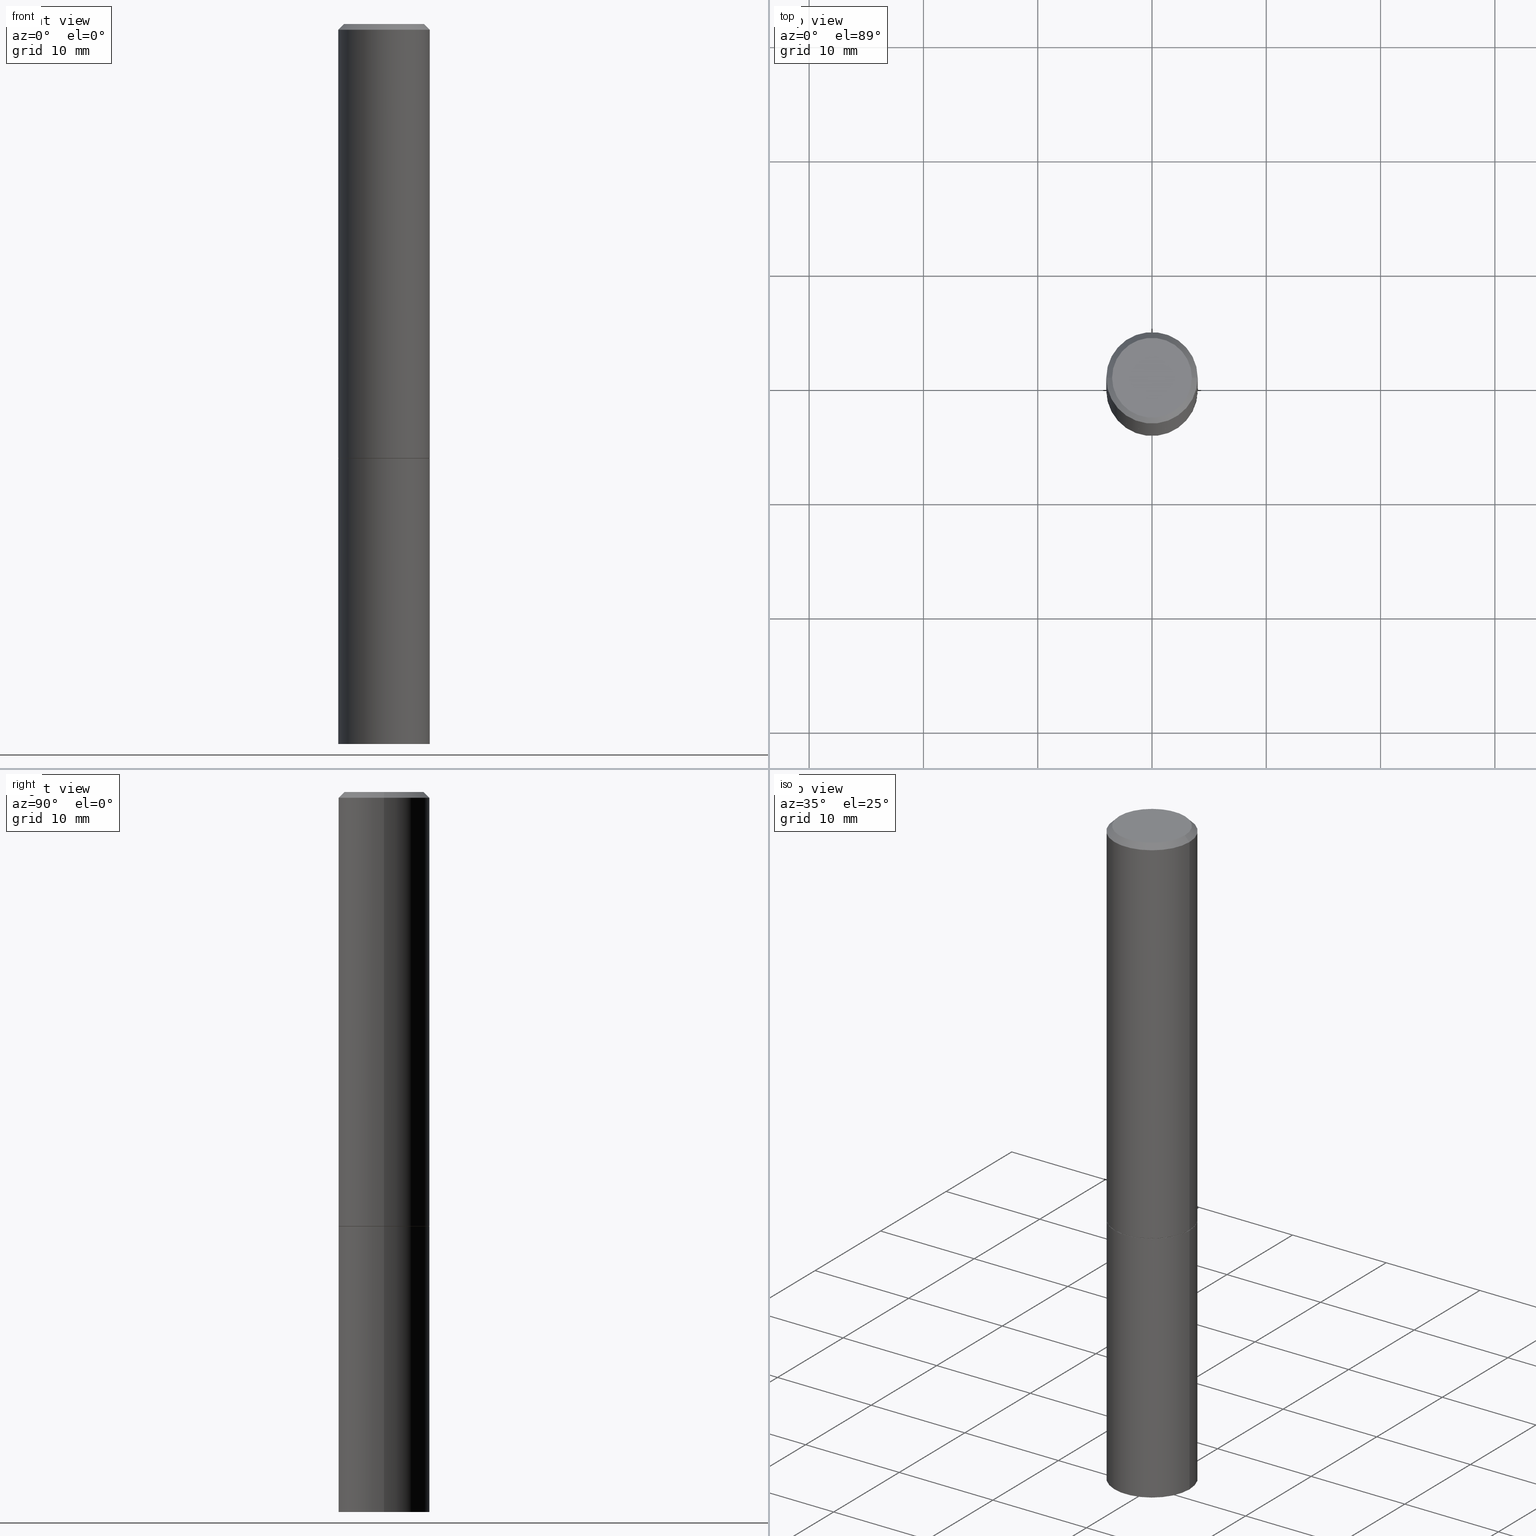
[diagram: canonical four-view strip — front | top / right | iso, engineering-drawing reading convention]
A machine part, canonical four-view strip (front | top / right | iso — engineering-drawing reading convention). The complete STEP part file that produces these views, byte-faithful:
ISO-10303-21;
HEADER;
FILE_DESCRIPTION (( 'STEP AP203' ),
    '1' );
FILE_NAME ('83232.STEP',
    '2024-03-01T01:42:15',
    ( '' ),
    ( '' ),
    'SwSTEP 2.0',
    'SolidWorks 2023',
    '' );
FILE_SCHEMA (( 'CONFIG_CONTROL_DESIGN' ));
ENDSEC;

DATA;
#1 = CARTESIAN_POINT ( 'NONE',  ( -0.1574999999999999456, 1.119104808822157406E-15, -7.747322767151474182E-30 ) ) ;
#2 = DIRECTION ( 'NONE',  ( 1.000000000000000000, -6.982962677686267499E-15, 4.876176775795935793E-29 ) ) ;
#3 = FACE_OUTER_BOUND ( 'NONE', #59, .T. ) ;
#4 = LINE ( 'NONE', #216, #126 ) ;
#5 = CIRCLE ( 'NONE', #95, 0.1575000000000000011 ) ;
#6 = FACE_OUTER_BOUND ( 'NONE', #335, .T. ) ;
#7 = CARTESIAN_POINT ( 'NONE',  ( -1.043851414335219820E-46, 1.490343170380447200E-32, 4.268512490100411279E-18 ) ) ;
#8 = SECURITY_CLASSIFICATION ( '', '', #146 ) ;
#9 = CARTESIAN_POINT ( 'NONE',  ( 0.1574999999999999456, -1.099816621735586691E-15, 7.679978421878596632E-30 ) ) ;
#10 = DATE_TIME_ROLE ( 'classification_date' ) ;
#11 = CC_DESIGN_PERSON_AND_ORGANIZATION_ASSIGNMENT ( #325, #265, ( #354 ) ) ;
#12 = AXIS2_PLACEMENT_3D ( 'NONE', #33, #314, #197 ) ;
#13 = COORDINATED_UNIVERSAL_TIME_OFFSET ( 5, 0, .BEHIND. ) ;
#14 = EDGE_LOOP ( 'NONE', ( #125, #192, #178, #42 ) ) ;
#15 = COORDINATED_UNIVERSAL_TIME_OFFSET ( 5, 0, .BEHIND. ) ;
#16 = ORIENTED_EDGE ( 'NONE', *, *, #254, .T. ) ;
#17 = LINE ( 'NONE', #91, #181 ) ;
#18 = DIRECTION ( 'NONE',  ( -2.445468806185136877E-29, 3.491481338843145188E-15, 1.000000000000000000 ) ) ;
#19 = ADVANCED_FACE ( 'NONE', ( #6 ), #193, .F. ) ;
#20 = APPROVAL_DATE_TIME ( #357, #84 ) ;
#21 = DIRECTION ( 'NONE',  ( 2.438088387897960049E-29, -3.491481338843145188E-15, -1.000000000000000000 ) ) ;
#22 = CARTESIAN_POINT ( 'NONE',  ( 3.655975865246779683E-29, -5.219764601570503930E-15, -1.495000000000000329 ) ) ;
#23 = DESIGN_CONTEXT ( 'detailed design', #213, 'design' ) ;
#24 = ADVANCED_FACE ( 'NONE', ( #31 ), #32, .T. ) ;
#25 = VECTOR ( 'NONE', #96, 39.37007874015748143 ) ;
#26 = COORDINATED_UNIVERSAL_TIME_OFFSET ( 5, 0, .BEHIND. ) ;
#27 = ORIENTED_EDGE ( 'NONE', *, *, #366, .T. ) ;
#28 = CIRCLE ( 'NONE', #247, 0.1565000000000000002 ) ;
#29 = ORIENTED_EDGE ( 'NONE', *, *, #39, .F. ) ;
#30 = AXIS2_PLACEMENT_3D ( 'NONE', #74, #184, #49 ) ;
#31 = FACE_OUTER_BOUND ( 'NONE', #68, .T. ) ;
#32 = CYLINDRICAL_SURFACE ( 'NONE', #302, 0.1574999999999999456 ) ;
#33 = CARTESIAN_POINT ( 'NONE',  ( 3.658421334052965286E-29, -5.223256082909346937E-15, -1.496000000000000441 ) ) ;
#34 = ADVANCED_FACE ( 'NONE', ( #3 ), #284, .T. ) ;
#35 = DIRECTION ( 'NONE',  ( -2.445468806185136597E-29, 3.491481338843145583E-15, 1.000000000000000000 ) ) ;
#36 = CARTESIAN_POINT ( 'NONE',  ( 1.099816621735647434E-15, 0.1574999999999913136, -2.480300000000001059 ) ) ;
#37 = APPROVAL_STATUS ( 'not_yet_approved' ) ;
#38 = FACE_OUTER_BOUND ( 'NONE', #351, .T. ) ;
#39 = EDGE_CURVE ( 'NONE', #57, #297, #315, .T. ) ;
#40 = PERSON_AND_ORGANIZATION ( #148, #134 ) ;
#41 = AXIS2_PLACEMENT_3D ( 'NONE', #207, #47, #238 ) ;
#42 = ORIENTED_EDGE ( 'NONE', *, *, #132, .F. ) ;
#43 = CIRCLE ( 'NONE', #188, 0.1575000000000000566 ) ;
#44 = CALENDAR_DATE ( 2024, 29, 2 ) ;
#45 = ORIENTED_EDGE ( 'NONE', *, *, #80, .F. ) ;
#46 = DIRECTION ( 'NONE',  ( 1.000000000000000000, -6.982962677686267499E-15, 0.000000000000000000 ) ) ;
#47 = DIRECTION ( 'NONE',  ( 2.445468806185136597E-29, -3.491481338843145583E-15, -1.000000000000000000 ) ) ;
#48 = ADVANCED_FACE ( 'NONE', ( #331 ), #156, .T. ) ;
#49 = DIRECTION ( 'NONE',  ( 1.000000000000000000, -6.982962677686268288E-15, 0.000000000000000000 ) ) ;
#50 = VECTOR ( 'NONE', #109, 39.37007874015748143 ) ;
#51 = EDGE_CURVE ( 'NONE', #83, #166, #77, .T. ) ;
#52 = CC_DESIGN_DATE_AND_TIME_ASSIGNMENT ( #256, #10, ( #8 ) ) ;
#53 = CARTESIAN_POINT ( 'NONE',  ( 3.658421334052965286E-29, -5.223256082909346937E-15, -1.496000000000000441 ) ) ;
#54 = DATE_TIME_ROLE ( 'creation_date' ) ;
#55 = DIRECTION ( 'NONE',  ( 1.000000000000000000, -6.982962677686265922E-15, 4.876173381029105087E-29 ) ) ;
#56 = CIRCLE ( 'NONE', #220, 0.1565000000000000002 ) ;
#57 = VERTEX_POINT ( 'NONE', #294 ) ;
#58 = DIRECTION ( 'NONE',  ( -2.445468806185136597E-29, 3.491481338843145583E-15, 1.000000000000000000 ) ) ;
#59 = EDGE_LOOP ( 'NONE', ( #347, #165, #145, #281 ) ) ;
#60 = CARTESIAN_POINT ( 'NONE',  ( -0.1565000000000000002, -4.111256701444790342E-15, -1.496000000000000441 ) ) ;
#61 = CALENDAR_DATE ( 2024, 29, 2 ) ;
#62 = ORIENTED_EDGE ( 'NONE', *, *, #129, .F. ) ;
#63 = LINE ( 'NONE', #171, #246 ) ;
#64 = ADVANCED_FACE ( 'NONE', ( #119 ), #271, .F. ) ;
#65 = LINE ( 'NONE', #60, #208 ) ;
#66 = PERSON_AND_ORGANIZATION_ROLE ( 'design_supplier' ) ;
#67 = DATE_AND_TIME ( #318, #160 ) ;
#68 = EDGE_LOOP ( 'NONE', ( #237, #168, #263, #228 ) ) ;
#69 = MANIFOLD_SOLID_BREP ( 'Body-Move/Copy2[1]', #308 ) ;
#70 = ORIENTED_EDGE ( 'NONE', *, *, #206, .T. ) ;
#71 = EDGE_CURVE ( 'NONE', #270, #128, #177, .T. ) ;
#72 = LOCAL_TIME ( 20, 42, 15.00000000000000000, #15 ) ;
#73 = CARTESIAN_POINT ( 'NONE',  ( 3.658421334052965286E-29, -5.223256082909346937E-15, -1.496000000000000441 ) ) ;
#74 = CARTESIAN_POINT ( 'NONE',  ( 3.658421334052965286E-29, -5.223256082909346937E-15, -1.496000000000000441 ) ) ;
#75 = ADVANCED_FACE ( 'NONE', ( #152 ), #355, .T. ) ;
#76 = CIRCLE ( 'NONE', #113, 0.1374999999999998723 ) ;
#77 = LINE ( 'NONE', #241, #130 ) ;
#78 = ORIENTED_EDGE ( 'NONE', *, *, #94, .T. ) ;
#79 = FACE_OUTER_BOUND ( 'NONE', #85, .T. ) ;
#80 = EDGE_CURVE ( 'NONE', #83, #337, #5, .T. ) ;
#81 = ORIENTED_EDGE ( 'NONE', *, *, #299, .F. ) ;
#82 = DIRECTION ( 'NONE',  ( -0.7071067811865474617, 7.493145998870352582E-15, 0.7071067811865474617 ) ) ;
#83 = VERTEX_POINT ( 'NONE', #326 ) ;
#84 = APPROVAL ( #120, 'UNSPECIFIED' ) ;
#85 = EDGE_LOOP ( 'NONE', ( #62, #45 ) ) ;
#86 = APPROVAL_PERSON_ORGANIZATION ( #40, #118, #231 ) ;
#87 = CONICAL_SURFACE ( 'NONE', #253, 0.1565000000000000002, 0.7853981633974482790 ) ;
#88 =( CONVERSION_BASED_UNIT ( 'INCH', #153 ) LENGTH_UNIT ( ) NAMED_UNIT ( #170 ) );
#89 = EDGE_LOOP ( 'NONE', ( #78, #218 ) ) ;
#90 = EDGE_LOOP ( 'NONE', ( #202, #210, #272, #261 ) ) ;
#91 = CARTESIAN_POINT ( 'NONE',  ( -0.1574999999999998623, 1.029986994958722999E-15, -0.02000000000000003511 ) ) ;
#92 = DIRECTION ( 'NONE',  ( -2.445468806185136597E-29, 3.491481338843145583E-15, 1.000000000000000000 ) ) ;
#93 = DIRECTION ( 'NONE',  ( -2.445468806185136597E-29, 3.491481338843145583E-15, 1.000000000000000000 ) ) ;
#94 = EDGE_CURVE ( 'NONE', #319, #166, #187, .T. ) ;
#95 = AXIS2_PLACEMENT_3D ( 'NONE', #154, #92, #358 ) ;
#96 = DIRECTION ( 'NONE',  ( 0.7071067811865466846, -7.319954787623252890E-15, -0.7071067811865483499 ) ) ;
#97 = ORIENTED_EDGE ( 'NONE', *, *, #110, .F. ) ;
#98 = CARTESIAN_POINT ( 'NONE',  ( -0.1574999999999998623, 1.029986994958722999E-15, -0.02000000000000003511 ) ) ;
#99 = AXIS2_PLACEMENT_3D ( 'NONE', #361, #155, #163 ) ;
#100 = AXIS2_PLACEMENT_3D ( 'NONE', #280, #194, #309 ) ;
#101 = ORIENTED_EDGE ( 'NONE', *, *, #129, .T. ) ;
#102 = CYLINDRICAL_SURFACE ( 'NONE', #338, 0.1575000000000000011 ) ;
#103 = DIRECTION ( 'NONE',  ( 2.445468806185136597E-29, -3.491481338843145583E-15, -1.000000000000000000 ) ) ;
#104 = PLANE ( 'NONE',  #105 ) ;
#105 = AXIS2_PLACEMENT_3D ( 'NONE', #345, #336, #286 ) ;
#106 = CARTESIAN_POINT ( 'NONE',  ( 3.655975865246779683E-29, -5.219764601570503930E-15, -1.495000000000000329 ) ) ;
#107 = DIRECTION ( 'NONE',  ( -2.445468806185136877E-29, 3.491481338843145188E-15, 1.000000000000000000 ) ) ;
#108 = PRODUCT_DEFINITION_FORMATION_WITH_SPECIFIED_SOURCE ( 'ANY', '', #354, .NOT_KNOWN. ) ;
#109 = DIRECTION ( 'NONE',  ( -2.445468806185136877E-29, 3.491481338843145188E-15, 1.000000000000000000 ) ) ;
#110 = EDGE_CURVE ( 'NONE', #297, #57, #43, .T. ) ;
#111 = CARTESIAN_POINT ( 'NONE',  ( 0.1574999999999998623, -1.150358061425878289E-15, -0.02000000000000003511 ) ) ;
#112 = PRODUCT_DEFINITION_SHAPE ( 'NONE', 'NONE',  #346 ) ;
#113 = AXIS2_PLACEMENT_3D ( 'NONE', #330, #159, #55 ) ;
#114 = CARTESIAN_POINT ( 'NONE',  ( 0.1575000000000000011, -6.323072704644934417E-15, -1.496000000000000441 ) ) ;
#115 = ORIENTED_EDGE ( 'NONE', *, *, #51, .T. ) ;
#116 = CALENDAR_DATE ( 2024, 29, 2 ) ;
#117 = ORIENTED_EDGE ( 'NONE', *, *, #51, .F. ) ;
#118 = APPROVAL ( #37, 'UNSPECIFIED' ) ;
#119 = FACE_OUTER_BOUND ( 'NONE', #89, .T. ) ;
#120 = APPROVAL_STATUS ( 'not_yet_approved' ) ;
#121 = ADVANCED_FACE ( 'NONE', ( #185 ), #269, .T. ) ;
#122 = CARTESIAN_POINT ( 'NONE',  ( 4.890937612370281041E-31, -6.982962677686302702E-17, -0.02000000000000003511 ) ) ;
#123 = DIRECTION ( 'NONE',  ( -2.445468806185136597E-29, 3.491481338843145583E-15, 1.000000000000000000 ) ) ;
#124 = CC_DESIGN_PERSON_AND_ORGANIZATION_ASSIGNMENT ( #179, #258, ( #108 ) ) ;
#125 = ORIENTED_EDGE ( 'NONE', *, *, #183, .F. ) ;
#126 = VECTOR ( 'NONE', #107, 39.37007874015748143 ) ;
#127 = DIRECTION ( 'NONE',  ( -2.445468806185136597E-29, 3.491481338843145583E-15, 1.000000000000000000 ) ) ;
#128 = VERTEX_POINT ( 'NONE', #98 ) ;
#129 = EDGE_CURVE ( 'NONE', #337, #83, #313, .T. ) ;
#130 = VECTOR ( 'NONE', #18, 39.37007874015748143 ) ;
#131 = ORIENTED_EDGE ( 'NONE', *, *, #299, .T. ) ;
#132 = EDGE_CURVE ( 'NONE', #128, #270, #198, .T. ) ;
#133 = CARTESIAN_POINT ( 'NONE',  ( 0.000000000000000000, 0.000000000000000000, 0.000000000000000000 ) ) ;
#134 = ORGANIZATION ( 'UNSPECIFIED', 'UNSPECIFIED', '' ) ;
#135 = ORIENTED_EDGE ( 'NONE', *, *, #195, .F. ) ;
#136 = DIRECTION ( 'NONE',  ( 1.000000000000000000, -6.982962677686267499E-15, 0.000000000000000000 ) ) ;
#137 = ORIENTED_EDGE ( 'NONE', *, *, #80, .T. ) ;
#138 = DIRECTION ( 'NONE',  ( 0.7071067811865474617, -2.468850131082256666E-15, 0.7071067811865474617 ) ) ;
#139 = LOCAL_TIME ( 20, 42, 15.00000000000000000, #26 ) ;
#140 = PERSON_AND_ORGANIZATION_ROLE ( 'classification_officer' ) ;
#141 = AXIS2_PLACEMENT_3D ( 'NONE', #106, #221, #233 ) ;
#142 = APPLICATION_CONTEXT ( 'configuration controlled 3d designs of mechanical parts and assemblies' ) ;
#143 = SHAPE_DEFINITION_REPRESENTATION ( #112, #285 ) ;
#144 = CYLINDRICAL_SURFACE ( 'NONE', #100, 0.1575000000000000011 ) ;
#145 = ORIENTED_EDGE ( 'NONE', *, *, #71, .T. ) ;
#146 = SECURITY_CLASSIFICATION_LEVEL ( 'unclassified' ) ;
#147 = APPROVAL_ROLE ( '' ) ;
#148 = PERSON ( 'UNSPECIFIED', 'UNSPECIFIED', 'UNSPECIFIED', ('UNSPECIFIED'), ('UNSPECIFIED'), ('UNSPECIFIED') ) ;
#149 = ORIENTED_EDGE ( 'NONE', *, *, #264, .T. ) ;
#150 = COORDINATED_UNIVERSAL_TIME_OFFSET ( 5, 0, .BEHIND. ) ;
#151 = APPLICATION_PROTOCOL_DEFINITION ( 'international standard', 'config_control_design', 1994, #142 ) ;
#152 = FACE_OUTER_BOUND ( 'NONE', #14, .T. ) ;
#153 = LENGTH_MEASURE_WITH_UNIT ( LENGTH_MEASURE( 0.02539999999999999897 ), #214 );
#154 = CARTESIAN_POINT ( 'NONE',  ( 6.065496279980994755E-29, -8.659921164732655335E-15, -2.480300000000000171 ) ) ;
#155 = DIRECTION ( 'NONE',  ( -2.445468806185136597E-29, 3.491481338843145583E-15, 1.000000000000000000 ) ) ;
#156 = CONICAL_SURFACE ( 'NONE', #41, 0.1574999999999998623, 0.7853981633974471688 ) ;
#157 = MECHANICAL_CONTEXT ( 'NONE', #142, 'mechanical' ) ;
#158 = ORIENTED_EDGE ( 'NONE', *, *, #236, .T. ) ;
#159 = DIRECTION ( 'NONE',  ( -2.445468806185136597E-29, 3.491481338843145583E-15, 1.000000000000000000 ) ) ;
#160 = LOCAL_TIME ( 20, 42, 15.00000000000000000, #13 ) ;
#161 = DIRECTION ( 'NONE',  ( -2.445468806185136597E-29, 3.491481338843145583E-15, 1.000000000000000000 ) ) ;
#162 = EDGE_CURVE ( 'NONE', #288, #270, #191, .T. ) ;
#163 = DIRECTION ( 'NONE',  ( 1.000000000000000000, -6.982962677686267499E-15, 0.000000000000000000 ) ) ;
#164 = CIRCLE ( 'NONE', #12, 0.1575000000000000011 ) ;
#165 = ORIENTED_EDGE ( 'NONE', *, *, #162, .T. ) ;
#166 = VERTEX_POINT ( 'NONE', #209 ) ;
#167 = CARTESIAN_POINT ( 'NONE',  ( -0.1575000000000000566, -1.525692305351523841E-15, -1.495000000000000329 ) ) ;
#168 = ORIENTED_EDGE ( 'NONE', *, *, #183, .T. ) ;
#169 = CC_DESIGN_APPROVAL ( #118, ( #8 ) ) ;
#170 = DIMENSIONAL_EXPONENTS ( 1.000000000000000000, 0.000000000000000000, 0.000000000000000000, 0.000000000000000000, 0.000000000000000000, 0.000000000000000000, 0.000000000000000000 ) ;
#171 = CARTESIAN_POINT ( 'NONE',  ( 0.1565000000000000002, -6.316089741967247614E-15, -1.496000000000000441 ) ) ;
#172 = CARTESIAN_POINT ( 'NONE',  ( 3.658421334052965286E-29, -5.223256082909346937E-15, -1.496000000000000441 ) ) ;
#173 = CLOSED_SHELL ( 'NONE', ( #317, #24, #34, #48, #75, #121, #19, #273 ) ) ;
#174 = AXIS2_PLACEMENT_3D ( 'NONE', #251, #103, #215 ) ;
#175 = EDGE_CURVE ( 'NONE', #288, #340, #76, .T. ) ;
#176 = DIRECTION ( 'NONE',  ( -2.445468806185136597E-29, 3.491481338843145583E-15, 1.000000000000000000 ) ) ;
#177 = CIRCLE ( 'NONE', #217, 0.1574999999999998623 ) ;
#178 = ORIENTED_EDGE ( 'NONE', *, *, #312, .T. ) ;
#179 = PERSON_AND_ORGANIZATION ( #148, #134 ) ;
#180 = AXIS2_PLACEMENT_3D ( 'NONE', #274, #161, #189 ) ;
#181 = VECTOR ( 'NONE', #353, 39.37007874015748143 ) ;
#182 = FACE_OUTER_BOUND ( 'NONE', #332, .T. ) ;
#183 = EDGE_CURVE ( 'NONE', #297, #128, #243, .T. ) ;
#184 = DIRECTION ( 'NONE',  ( -2.445468806185136597E-29, 3.491481338843145583E-15, 1.000000000000000000 ) ) ;
#185 = FACE_OUTER_BOUND ( 'NONE', #360, .T. ) ;
#186 = PERSON_AND_ORGANIZATION_ROLE ( 'creator' ) ;
#187 = CIRCLE ( 'NONE', #30, 0.1575000000000000011 ) ;
#188 = AXIS2_PLACEMENT_3D ( 'NONE', #22, #123, #328 ) ;
#189 = DIRECTION ( 'NONE',  ( 1.000000000000000000, -6.982962677686261977E-15, 0.000000000000000000 ) ) ;
#190 = ADVANCED_FACE ( 'NONE', ( #79 ), #275, .T. ) ;
#191 = LINE ( 'NONE', #298, #25 ) ;
#192 = ORIENTED_EDGE ( 'NONE', *, *, #110, .T. ) ;
#193 = PLANE ( 'NONE',  #362 ) ;
#194 = DIRECTION ( 'NONE',  ( -2.445468806185136597E-29, 3.491481338843145583E-15, 1.000000000000000000 ) ) ;
#195 = EDGE_CURVE ( 'NONE', #166, #319, #164, .T. ) ;
#196 = ORIENTED_EDGE ( 'NONE', *, *, #264, .F. ) ;
#197 = DIRECTION ( 'NONE',  ( 1.000000000000000000, -6.982962677686268288E-15, 0.000000000000000000 ) ) ;
#198 = CIRCLE ( 'NONE', #240, 0.1574999999999998623 ) ;
#199 = DATE_AND_TIME ( #61, #245 ) ;
#200 = PERSON_AND_ORGANIZATION ( #148, #134 ) ;
#201 = APPROVAL_ROLE ( '' ) ;
#202 = ORIENTED_EDGE ( 'NONE', *, *, #162, .F. ) ;
#203 = PERSON_AND_ORGANIZATION ( #148, #134 ) ;
#204 = CARTESIAN_POINT ( 'NONE',  ( 3.658421334052965286E-29, -5.223256082909346937E-15, -1.496000000000000441 ) ) ;
#205 = PERSON_AND_ORGANIZATION ( #148, #134 ) ;
#206 = EDGE_CURVE ( 'NONE', #277, #297, #65, .T. ) ;
#207 = CARTESIAN_POINT ( 'NONE',  ( 4.890937612370281041E-31, -6.982962677686302702E-17, -0.02000000000000003511 ) ) ;
#208 = VECTOR ( 'NONE', #82, 39.37007874015748854 ) ;
#209 = CARTESIAN_POINT ( 'NONE',  ( -0.1575000000000000011, -5.822483814998842744E-15, -1.496000000000000441 ) ) ;
#210 = ORIENTED_EDGE ( 'NONE', *, *, #254, .F. ) ;
#211 = DIRECTION ( 'NONE',  ( 1.000000000000000000, -6.982962677686266711E-15, 0.000000000000000000 ) ) ;
#212 = CARTESIAN_POINT ( 'NONE',  ( 1.099816621735623373E-15, 0.1574999999999947553, -1.496000000000000885 ) ) ;
#213 = APPLICATION_CONTEXT ( 'configuration controlled 3d designs of mechanical parts and assemblies' ) ;
#214 =( LENGTH_UNIT ( ) NAMED_UNIT ( * ) SI_UNIT ( $, .METRE. ) );
#215 = DIRECTION ( 'NONE',  ( -1.000000000000000000, 6.982962677686266711E-15, 0.000000000000000000 ) ) ;
#216 = CARTESIAN_POINT ( 'NONE',  ( 0.1575000000000000011, -1.099816621735586889E-15, 7.679978421878598033E-30 ) ) ;
#217 = AXIS2_PLACEMENT_3D ( 'NONE', #122, #127, #359 ) ;
#218 = ORIENTED_EDGE ( 'NONE', *, *, #195, .T. ) ;
#219 = CARTESIAN_POINT ( 'NONE',  ( -0.1565000000000000002, -4.105958247096567940E-15, -1.496000000000000441 ) ) ;
#220 = AXIS2_PLACEMENT_3D ( 'NONE', #172, #58, #136 ) ;
#221 = DIRECTION ( 'NONE',  ( -2.445468806185136597E-29, 3.491481338843145583E-15, 1.000000000000000000 ) ) ;
#222 = CC_DESIGN_APPROVAL ( #84, ( #346 ) ) ;
#223 = LINE ( 'NONE', #9, #50 ) ;
#224 = AXIS2_PLACEMENT_3D ( 'NONE', #266, #235, #291 ) ;
#225 = CARTESIAN_POINT ( 'NONE',  ( 0.1565000000000000002, -6.316089741967247614E-15, -1.496000000000000441 ) ) ;
#226 = CARTESIAN_POINT ( 'NONE',  ( 0.1575000000000000011, -9.759737786468242027E-15, -2.480300000000000171 ) ) ;
#227 = LOCAL_TIME ( 20, 42, 15.00000000000000000, #289 ) ;
#228 = ORIENTED_EDGE ( 'NONE', *, *, #312, .F. ) ;
#229 =( NAMED_UNIT ( * ) SI_UNIT ( $, .STERADIAN. ) SOLID_ANGLE_UNIT ( ) );
#230 = VERTEX_POINT ( 'NONE', #225 ) ;
#231 = APPROVAL_ROLE ( '' ) ;
#232 = PERSON_AND_ORGANIZATION ( #148, #134 ) ;
#233 = DIRECTION ( 'NONE',  ( 1.000000000000000000, -6.982962677686265922E-15, 0.000000000000000000 ) ) ;
#234 = APPROVAL_STATUS ( 'not_yet_approved' ) ;
#235 = DIRECTION ( 'NONE',  ( -2.445468806185136597E-29, 3.491481338843145583E-15, 1.000000000000000000 ) ) ;
#236 = EDGE_CURVE ( 'NONE', #277, #230, #56, .T. ) ;
#237 = ORIENTED_EDGE ( 'NONE', *, *, #39, .T. ) ;
#238 = DIRECTION ( 'NONE',  ( -1.000000000000000000, 6.982962677686266711E-15, 0.000000000000000000 ) ) ;
#239 = EDGE_LOOP ( 'NONE', ( #117, #137, #149, #135 ) ) ;
#240 = AXIS2_PLACEMENT_3D ( 'NONE', #334, #365, #211 ) ;
#241 = CARTESIAN_POINT ( 'NONE',  ( -0.1575000000000000011, 1.119104808822157801E-15, -7.747322767151475583E-30 ) ) ;
#242 = CARTESIAN_POINT ( 'NONE',  ( 0.000000000000000000, 0.000000000000000000, 0.000000000000000000 ) ) ;
#243 = LINE ( 'NONE', #1, #329 ) ;
#244 = ADVANCED_FACE ( 'NONE', ( #257 ), #102, .T. ) ;
#245 = LOCAL_TIME ( 20, 42, 15.00000000000000000, #150 ) ;
#246 = VECTOR ( 'NONE', #138, 39.37007874015748854 ) ;
#247 = AXIS2_PLACEMENT_3D ( 'NONE', #73, #93, #46 ) ;
#248 = ORIENTED_EDGE ( 'NONE', *, *, #206, .F. ) ;
#249 = ORIENTED_EDGE ( 'NONE', *, *, #366, .F. ) ;
#250 = DIRECTION ( 'NONE',  ( 1.000000000000000000, -6.982962677686265922E-15, 4.876173381029105087E-29 ) ) ;
#251 = CARTESIAN_POINT ( 'NONE',  ( 4.890937612370281041E-31, -6.982962677686302702E-17, -0.02000000000000003511 ) ) ;
#252 = DIRECTION ( 'NONE',  ( -1.000000000000000000, 6.982962677686265922E-15, -4.876176775795935793E-29 ) ) ;
#253 = AXIS2_PLACEMENT_3D ( 'NONE', #53, #259, #324 ) ;
#254 = EDGE_CURVE ( 'NONE', #340, #288, #260, .T. ) ;
#255 = FACE_OUTER_BOUND ( 'NONE', #239, .T. ) ;
#256 = DATE_AND_TIME ( #116, #227 ) ;
#257 = FACE_OUTER_BOUND ( 'NONE', #307, .T. ) ;
#258 = PERSON_AND_ORGANIZATION_ROLE ( 'creator' ) ;
#259 = DIRECTION ( 'NONE',  ( -2.445468806185136597E-29, 3.491481338843145583E-15, 1.000000000000000000 ) ) ;
#260 = CIRCLE ( 'NONE', #305, 0.1374999999999998723 ) ;
#261 = ORIENTED_EDGE ( 'NONE', *, *, #132, .T. ) ;
#262 = DIRECTION ( 'NONE',  ( 0.000000000000000000, 0.000000000000000000, 1.000000000000000000 ) ) ;
#263 = ORIENTED_EDGE ( 'NONE', *, *, #71, .F. ) ;
#264 = EDGE_CURVE ( 'NONE', #337, #319, #4, .T. ) ;
#265 = PERSON_AND_ORGANIZATION_ROLE ( 'design_owner' ) ;
#266 = CARTESIAN_POINT ( 'NONE',  ( 0.000000000000000000, 0.000000000000000000, 0.000000000000000000 ) ) ;
#267 = AXIS2_PLACEMENT_3D ( 'NONE', #212, #21, #290 ) ;
#268 = DIRECTION ( 'NONE',  ( 1.000000000000000000, 0.000000000000000000, 0.000000000000000000 ) ) ;
#269 = CONICAL_SURFACE ( 'NONE', #99, 0.1565000000000000002, 0.7853981633974482790 ) ;
#270 = VERTEX_POINT ( 'NONE', #111 ) ;
#271 = PLANE ( 'NONE',  #267 ) ;
#272 = ORIENTED_EDGE ( 'NONE', *, *, #341, .T. ) ;
#273 = ADVANCED_FACE ( 'NONE', ( #38 ), #104, .F. ) ;
#274 = CARTESIAN_POINT ( 'NONE',  ( 6.065496279980994755E-29, -8.659921164732655335E-15, -2.480300000000000171 ) ) ;
#275 = PLANE ( 'NONE',  #287 ) ;
#276 = DIRECTION ( 'NONE',  ( 1.000000000000000000, -6.982962677686265922E-15, 4.876176775795935793E-29 ) ) ;
#277 = VERTEX_POINT ( 'NONE', #219 ) ;
#278 = PRODUCT_RELATED_PRODUCT_CATEGORY ( 'detail', '', ( #354 ) ) ;
#279 = ORIENTED_EDGE ( 'NONE', *, *, #94, .F. ) ;
#280 = CARTESIAN_POINT ( 'NONE',  ( 0.000000000000000000, 0.000000000000000000, 0.000000000000000000 ) ) ;
#281 = ORIENTED_EDGE ( 'NONE', *, *, #341, .F. ) ;
#282 = DIRECTION ( 'NONE',  ( 2.438088387897960049E-29, -3.491481338843145188E-15, -1.000000000000000000 ) ) ;
#283 = CARTESIAN_POINT ( 'NONE',  ( 0.000000000000000000, 0.000000000000000000, 0.000000000000000000 ) ) ;
#284 = CONICAL_SURFACE ( 'NONE', #174, 0.1574999999999998623, 0.7853981633974471688 ) ;
#285 = ADVANCED_BREP_SHAPE_REPRESENTATION ( '83232', ( #69, #295, #293 ), #301 ) ;
#286 = DIRECTION ( 'NONE',  ( -1.000000000000000000, 6.982962677686265922E-15, -4.876176775795935793E-29 ) ) ;
#287 = AXIS2_PLACEMENT_3D ( 'NONE', #36, #282, #252 ) ;
#288 = VERTEX_POINT ( 'NONE', #339 ) ;
#289 = COORDINATED_UNIVERSAL_TIME_OFFSET ( 5, 0, .BEHIND. ) ;
#290 = DIRECTION ( 'NONE',  ( -1.000000000000000000, 6.982962677686265922E-15, -4.876176775795935793E-29 ) ) ;
#291 = DIRECTION ( 'NONE',  ( 1.000000000000000000, -6.982962677686267499E-15, 4.876176775795935793E-29 ) ) ;
#292 = APPROVAL ( #234, 'UNSPECIFIED' ) ;
#293 = AXIS2_PLACEMENT_3D ( 'NONE', #242, #262, #268 ) ;
#294 = CARTESIAN_POINT ( 'NONE',  ( 0.1575000000000000566, -6.319581223306091410E-15, -1.495000000000000329 ) ) ;
#295 = MANIFOLD_SOLID_BREP ( 'Body-Move/Copy2[2]', #173 ) ;
#296 = CALENDAR_DATE ( 2024, 29, 2 ) ;
#297 = VERTEX_POINT ( 'NONE', #167 ) ;
#298 = CARTESIAN_POINT ( 'NONE',  ( 0.1574999999999998623, -1.150358061425878289E-15, -0.02000000000000003511 ) ) ;
#299 = EDGE_CURVE ( 'NONE', #230, #57, #63, .T. ) ;
#300 = DATE_AND_TIME ( #296, #72 ) ;
#301 =( GEOMETRIC_REPRESENTATION_CONTEXT ( 3 ) GLOBAL_UNCERTAINTY_ASSIGNED_CONTEXT ( ( #320 ) ) GLOBAL_UNIT_ASSIGNED_CONTEXT ( ( #88, #363, #229 ) ) REPRESENTATION_CONTEXT ( 'NONE', 'WORKASPACE' ) );
#302 = AXIS2_PLACEMENT_3D ( 'NONE', #133, #35, #2 ) ;
#303 = ADVANCED_FACE ( 'NONE', ( #255 ), #144, .T. ) ;
#304 = ORIENTED_EDGE ( 'NONE', *, *, #236, .F. ) ;
#305 = AXIS2_PLACEMENT_3D ( 'NONE', #7, #342, #250 ) ;
#306 = APPROVAL_PERSON_ORGANIZATION ( #232, #84, #201 ) ;
#307 = EDGE_LOOP ( 'NONE', ( #101, #115, #279, #196 ) ) ;
#308 = CLOSED_SHELL ( 'NONE', ( #244, #190, #64, #303 ) ) ;
#309 = DIRECTION ( 'NONE',  ( 1.000000000000000000, -6.982962677686265922E-15, 4.876176775795935232E-29 ) ) ;
#310 = ORIENTED_EDGE ( 'NONE', *, *, #175, .T. ) ;
#311 = DIRECTION ( 'NONE',  ( 1.000000000000000000, -6.982962677686265922E-15, 4.876176775795935232E-29 ) ) ;
#312 = EDGE_CURVE ( 'NONE', #57, #270, #223, .T. ) ;
#313 = CIRCLE ( 'NONE', #180, 0.1575000000000000011 ) ;
#314 = DIRECTION ( 'NONE',  ( -2.445468806185136597E-29, 3.491481338843145583E-15, 1.000000000000000000 ) ) ;
#315 = CIRCLE ( 'NONE', #141, 0.1575000000000000566 ) ;
#316 = APPROVAL_DATE_TIME ( #67, #292 ) ;
#317 = ADVANCED_FACE ( 'NONE', ( #182 ), #87, .T. ) ;
#318 = CALENDAR_DATE ( 2024, 29, 2 ) ;
#319 = VERTEX_POINT ( 'NONE', #114 ) ;
#320 = UNCERTAINTY_MEASURE_WITH_UNIT (LENGTH_MEASURE( 1.000000000000000082E-05 ), #88, 'distance_accuracy_value', 'NONE');
#321 = CARTESIAN_POINT ( 'NONE',  ( -0.1374999999999998723, 9.950721815702917441E-16, 4.268512490093574228E-18 ) ) ;
#322 = DIRECTION ( 'NONE',  ( -2.438088387897960049E-29, 3.491481338843145188E-15, 1.000000000000000000 ) ) ;
#323 = APPROVAL_PERSON_ORGANIZATION ( #203, #292, #147 ) ;
#324 = DIRECTION ( 'NONE',  ( 1.000000000000000000, -6.982962677686267499E-15, 0.000000000000000000 ) ) ;
#325 = PERSON_AND_ORGANIZATION ( #148, #134 ) ;
#326 = CARTESIAN_POINT ( 'NONE',  ( -0.1575000000000000011, -5.822483814998842744E-15, -2.480300000000000171 ) ) ;
#327 = CC_DESIGN_PERSON_AND_ORGANIZATION_ASSIGNMENT ( #344, #140, ( #8 ) ) ;
#328 = DIRECTION ( 'NONE',  ( 1.000000000000000000, -6.982962677686265922E-15, 0.000000000000000000 ) ) ;
#329 = VECTOR ( 'NONE', #333, 39.37007874015748143 ) ;
#330 = CARTESIAN_POINT ( 'NONE',  ( -1.043851414335219820E-46, 1.490343170380447200E-32, 4.268512490100411279E-18 ) ) ;
#331 = FACE_OUTER_BOUND ( 'NONE', #90, .T. ) ;
#332 = EDGE_LOOP ( 'NONE', ( #27, #70, #29, #81 ) ) ;
#333 = DIRECTION ( 'NONE',  ( -2.445468806185136877E-29, 3.491481338843145188E-15, 1.000000000000000000 ) ) ;
#334 = CARTESIAN_POINT ( 'NONE',  ( 4.890937612370281041E-31, -6.982962677686302702E-17, -0.02000000000000003511 ) ) ;
#335 = EDGE_LOOP ( 'NONE', ( #249, #304 ) ) ;
#336 = DIRECTION ( 'NONE',  ( 2.438088387897960049E-29, -3.491481338843145188E-15, -1.000000000000000000 ) ) ;
#337 = VERTEX_POINT ( 'NONE', #226 ) ;
#338 = AXIS2_PLACEMENT_3D ( 'NONE', #283, #176, #311 ) ;
#339 = CARTESIAN_POINT ( 'NONE',  ( 0.1374999999999998723, -1.046838268059731505E-15, 4.268512490107428597E-18 ) ) ;
#340 = VERTEX_POINT ( 'NONE', #321 ) ;
#341 = EDGE_CURVE ( 'NONE', #340, #128, #17, .T. ) ;
#342 = DIRECTION ( 'NONE',  ( -2.445468806185136597E-29, 3.491481338843145583E-15, 1.000000000000000000 ) ) ;
#343 = CC_DESIGN_SECURITY_CLASSIFICATION ( #8, ( #108 ) ) ;
#344 = PERSON_AND_ORGANIZATION ( #148, #134 ) ;
#345 = CARTESIAN_POINT ( 'NONE',  ( 9.601573681818604894E-16, 0.1374999999999998723, -4.779444278458818063E-16 ) ) ;
#346 = PRODUCT_DEFINITION ( 'UNKNOWN', '', #108, #23 ) ;
#347 = ORIENTED_EDGE ( 'NONE', *, *, #175, .F. ) ;
#348 = CC_DESIGN_PERSON_AND_ORGANIZATION_ASSIGNMENT ( #200, #66, ( #108 ) ) ;
#349 = APPLICATION_PROTOCOL_DEFINITION ( 'international standard', 'config_control_design', 1994, #213 ) ;
#350 = CC_DESIGN_DATE_AND_TIME_ASSIGNMENT ( #300, #54, ( #346 ) ) ;
#351 = EDGE_LOOP ( 'NONE', ( #16, #310 ) ) ;
#352 = APPROVAL_DATE_TIME ( #199, #118 ) ;
#353 = DIRECTION ( 'NONE',  ( -0.7071067811865466846, 2.468850131082247989E-15, -0.7071067811865483499 ) ) ;
#354 = PRODUCT ( '83232', '83232', '', ( #157 ) ) ;
#355 = CYLINDRICAL_SURFACE ( 'NONE', #224, 0.1574999999999999456 ) ;
#356 = CC_DESIGN_APPROVAL ( #292, ( #108 ) ) ;
#357 = DATE_AND_TIME ( #44, #139 ) ;
#358 = DIRECTION ( 'NONE',  ( 1.000000000000000000, -6.982962677686261977E-15, 0.000000000000000000 ) ) ;
#359 = DIRECTION ( 'NONE',  ( 1.000000000000000000, -6.982962677686266711E-15, 0.000000000000000000 ) ) ;
#360 = EDGE_LOOP ( 'NONE', ( #248, #158, #131, #97 ) ) ;
#361 = CARTESIAN_POINT ( 'NONE',  ( 3.658421334052965286E-29, -5.223256082909346937E-15, -1.496000000000000441 ) ) ;
#362 = AXIS2_PLACEMENT_3D ( 'NONE', #204, #322, #276 ) ;
#363 =( NAMED_UNIT ( * ) PLANE_ANGLE_UNIT ( ) SI_UNIT ( $, .RADIAN. ) );
#364 = CC_DESIGN_PERSON_AND_ORGANIZATION_ASSIGNMENT ( #205, #186, ( #346 ) ) ;
#365 = DIRECTION ( 'NONE',  ( -2.445468806185136597E-29, 3.491481338843145583E-15, 1.000000000000000000 ) ) ;
#366 = EDGE_CURVE ( 'NONE', #230, #277, #28, .T. ) ;
ENDSEC;
END-ISO-10303-21;
